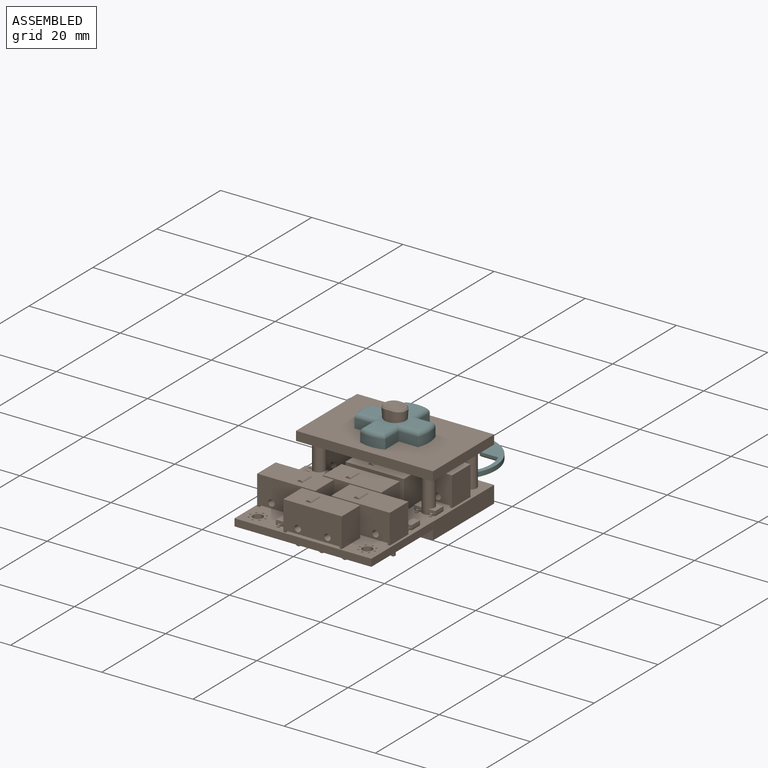
[diagram: assembled view]
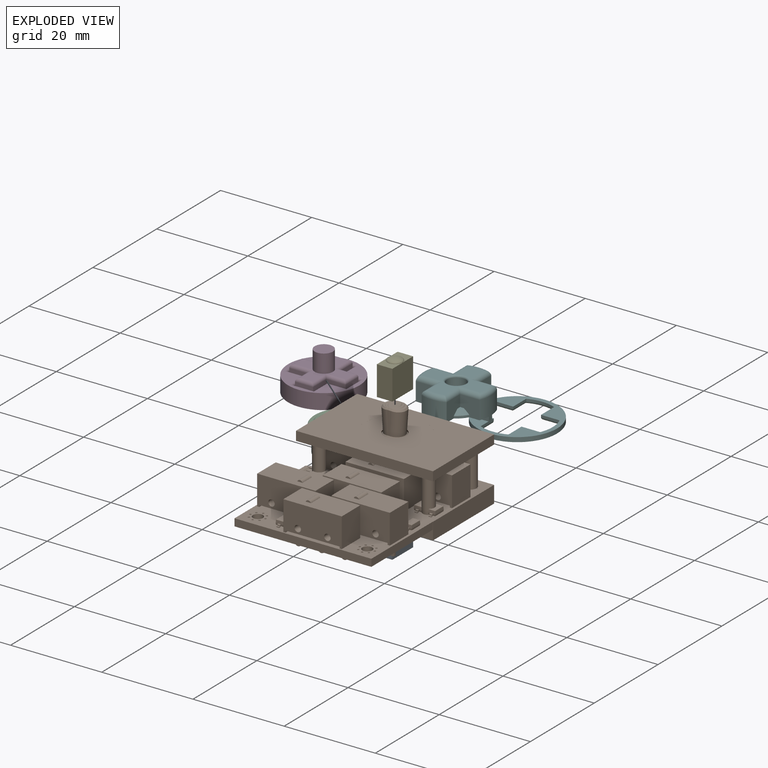
[diagram: exploded view]
GUIDED TOUR — FREECAD ASSEMBLY "caps"

This assembly has 6 components, labeled P0..P5 below (a component is one placed body or linked part; the same part can appear more than once), held together by 0 modeled joints plus 8 derived contact edges. A joint is a constraint between two components; its type names the relative motion it leaves free:
  CONTACT — a derived adjacency edge — the two components touch in the source model (clearance under 2% of the assembly's diagonal); it is measured from the geometry, not a modeled constraint.
Axis/direction vectors are unit vectors and 'through' points are millimeter coordinates, both in the assembly's world frame.

MATES
  1. CONTACT "contact_0_1": P0 <-> P1, contact direction (0.000, 0.000, 1.000) through (13.02, -12.62, 0.20) mm (derived from contact, not a modeled constraint)
  2. CONTACT "contact_0_4": P0 <-> P4, contact direction (0.000, 0.000, 1.000) through (13.28, -6.30, 0.00) mm (derived from contact, not a modeled constraint)
  3. CONTACT "contact_1_2": P1 <-> P2, contact direction (-0.687, 0.705, -0.177) through (4.05, -3.03, 0.02) mm (derived from contact, not a modeled constraint)
  4. CONTACT "contact_1_3": P1 <-> P3, contact direction (-0.687, 0.705, -0.177) through (3.18, -7.24, -0.01) mm (derived from contact, not a modeled constraint)
  5. CONTACT "contact_1_4": P1 <-> P4, contact direction (0.000, 0.000, 1.000) through (14.84, -8.62, 5.99) mm (derived from contact, not a modeled constraint)
  6. CONTACT "contact_1_5": P1 <-> P5, contact direction (0.000, 1.000, 0.000) through (14.38, -8.72, 7.47) mm (derived from contact, not a modeled constraint)
  7. CONTACT "contact_2_3": P2 <-> P3, contact direction (0.000, 0.000, 1.000) through (4.81, -4.93, 0.01) mm (derived from contact, not a modeled constraint)
  8. CONTACT "contact_4_5": P4 <-> P5, contact direction (0.000, 1.000, 0.000) through (15.87, -9.55, 7.01) mm (derived from contact, not a modeled constraint)

ASSEMBLY ORDER
  1. P1 — the base component [order heuristic]
  2. P0 [order heuristic]
  3. P2 [order heuristic]
  4. P3 [order heuristic]
  5. P4 [order heuristic]
  6. P5 [order heuristic]
Order-tag legend:
  [order heuristic] — this assembly is geometrically interlocked (no collision-free removal order exists), so components are listed in mate-graph order; insertion feasibility is not verified.

Of the 6 components, 6 carry a construction recipe — the FreeCAD feature program (sketches with constraints, then the solid features that consume them) that regenerates the part from scratch, quoted from this document or from the linked companion document it references; the rest are supplied as boundary geometry only. The tour below walks the components in assembly order: each is shown spotlighted twice — in the assembled view, then in the exploded view, where a leader line traces a displaced component back to its assembled socket (components that stay in place when exploded have no leader line; saturated green if recipe-attached, orange if geometry-only; every other component desaturated gray) — followed by its recipe or geometry summary and the mates that hold it.
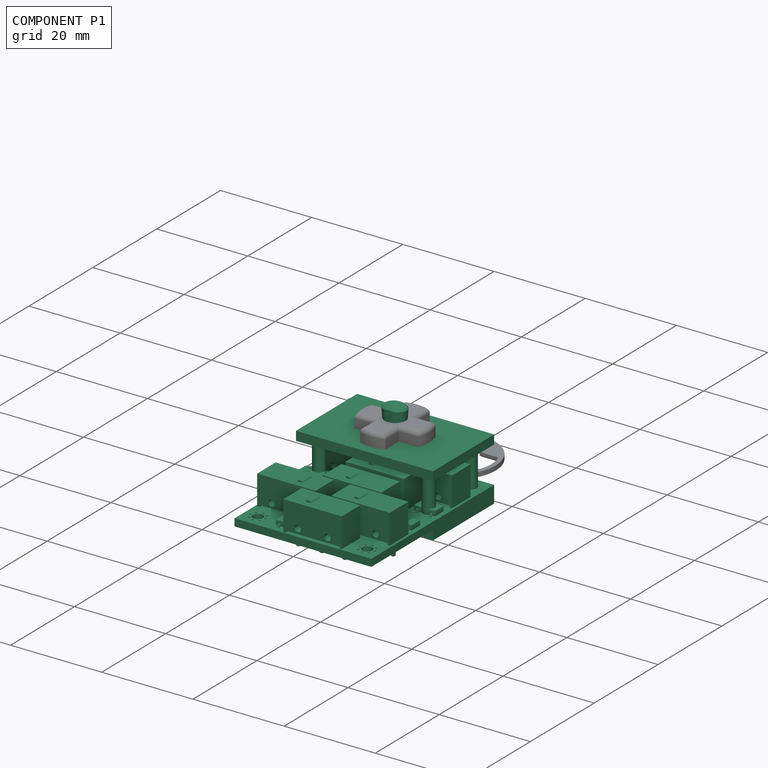
[diagram: component P1 — assembled]
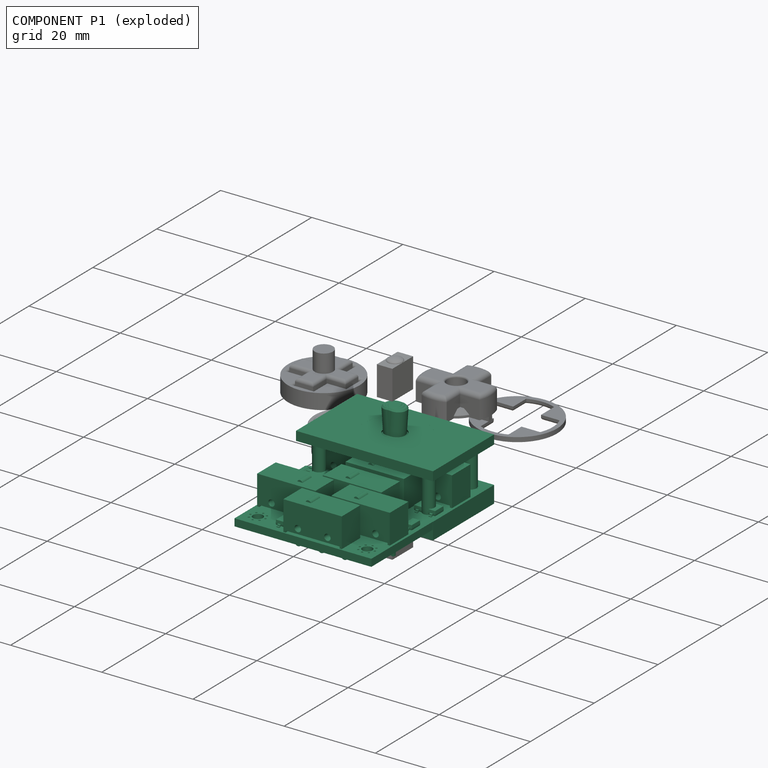
[diagram: component P1 — exploded]
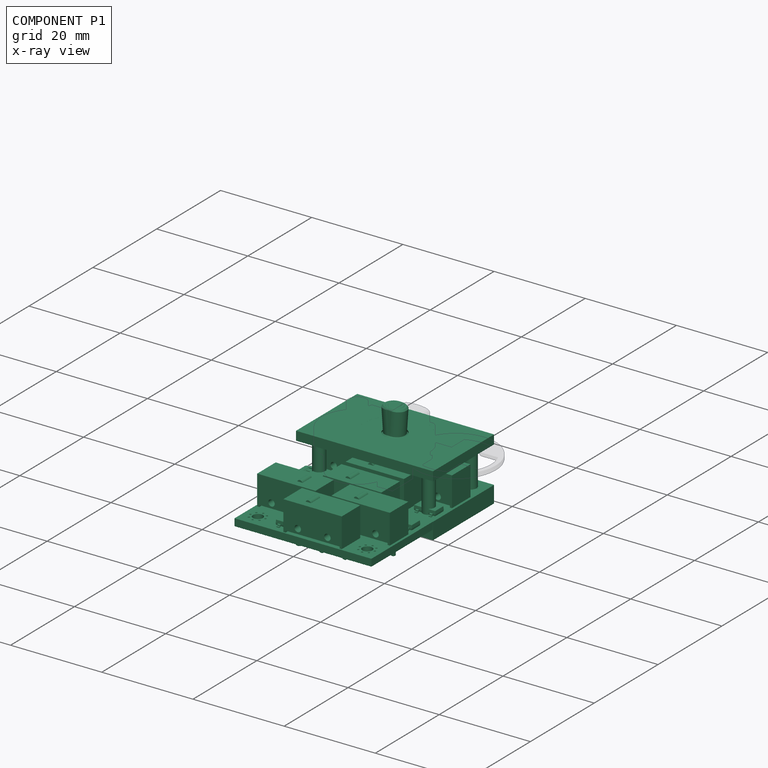
[diagram: component P1 — x-ray view]
COMPONENT P1 — recipe-attached ("tester", modeled in this document).
Held by: resting contact with P0 (derived edge); resting contact with P2 (derived edge); resting contact with P3 (derived edge); resting contact with P4 (derived edge); resting contact with P5 (derived edge).
Construction recipe (the document's own serialized feature program — sketch geometry with constraints, then the solid features built on it; lengths are millimeters unless a unit is written):

FEATURE [PartDesign::SubShapeBinder] Binder
  BindCopyOnChange = 0
  BindMode = 0
  ClaimChildren = false
  Context = -> Part [Part004.Body003.Binder.]
  Fuse = false
  MakeFace = true
  OffsetFill = false
  OffsetIntersection = false
  OffsetJoinType = 0
  OffsetOpenResult = false
  PartialLoad = false
  Refine = true
  Relative = true
  Support = -> [Link[Pocket003.Face26,Pocket003.Face27,Pocket003.Face25,Pocket003.Face24]]
  _Version = 2
FEATURE [Sketcher::SketchObject] Sketch008
  ArcFitTolerance = 1e-06
  AttachmentSupport = -> [Binder]
  ExternalGeometry = -> [Binder]
  FullyConstrained = true
  MakeInternals = false
  MapMode = 5
  Placement = pos=(0,0,-2.5) rot=(0,0,1;0rad)
  sketch-geometry (4):
    g0: Circle CenterX=2.98327 CenterY=-3.01673 CenterZ=0 NormalX=0 NormalY=0 NormalZ=1 AngleXU=0 Radius=1.3
    g1: Circle CenterX=27 CenterY=-3.01673 CenterZ=0 NormalX=0 NormalY=0 NormalZ=1 AngleXU=0 Radius=1.3
    g2: Circle CenterX=27 CenterY=-16.15 CenterZ=0 NormalX=0 NormalY=0 NormalZ=1 AngleXU=0 Radius=1.3
    g3: Circle CenterX=2.98327 CenterY=-16.15 CenterZ=0 NormalX=0 NormalY=0 NormalZ=1 AngleXU=0 Radius=1.3
  constraints (8):
    c: Coincident(g0,g-3)
    c: Diameter(g0) = 2.6
    c: Coincident(g1,g-4)
    c: Coincident(g2,g-5)
    c: Coincident(g3,g-6)
    c: Equal(g0,g1)
    c: Equal(g1,g2)
    c: Equal(g2,g3)
FEATURE [PartDesign::Pad] Pad001
  Direction = (0,0,1)
  Length = 2.5
  Length2 = 10
  Profile = -> Sketch008
  ReferenceAxis = -> Sketch008 [N_Axis]
  Refine = true
  Suppressed = false
  Type = 0
FEATURE [PartDesign::Pad] Pad002
  BaseFeature = -> Pad001
  Direction = (0,0,1)
  Length = 10.003
  Length2 = 10
  Profile = -> Pad001 [Face6,Face3,Face9,Face12]
  Refine = true
  Suppressed = false
  Type = 0
  expr: Length = <<vars>>#VarSet.Base_recess_height
FEATURE [PartDesign::SubShapeBinder] Binder001
  BindCopyOnChange = 0
  BindMode = 0
  ClaimChildren = false
  Context = -> Part [Part004.Body003.Binder001.]
  Fuse = false
  MakeFace = true
  OffsetFill = false
  OffsetIntersection = false
  OffsetJoinType = 0
  OffsetOpenResult = false
  PartialLoad = false
  Refine = true
  Relative = true
  Support = -> [Link[Pocket003.Edge6,Pocket003.Edge9]]
  _Version = 2
FEATURE [Sketcher::SketchObject] Sketch009
  ArcFitTolerance = 1e-06
  AttachmentSupport = -> [Pad002]
  ExternalGeometry = -> [Binder001]
  FullyConstrained = true
  MakeInternals = false
  MapMode = 5
  Placement = pos=(0,0,10.003) rot=(0,0,1;0rad)
  sketch-geometry (4):
    g0: LineSegment StartX=0 StartY=0 StartZ=0 EndX=0 EndY=-19.15 EndZ=0
    g1: LineSegment StartX=0 StartY=-19.15 StartZ=0 EndX=30.0509 EndY=-19.15 EndZ=0
    g2: LineSegment StartX=30.0509 StartY=-19.15 StartZ=0 EndX=30.0509 EndY=0 EndZ=0
    g3: LineSegment StartX=30.0509 StartY=0 StartZ=0 EndX=0 EndY=0 EndZ=0
  constraints (10):
    c: Coincident(g0,g1)
    c: Coincident(g1,g2)
    c: Coincident(g2,g3)
    c: Coincident(g3,g0)
    c: Vertical(g0)
    c: Vertical(g2)
    c: Horizontal(g1)
    c: Horizontal(g3)
    c: Coincident(g0,g-1)
    c: Coincident(g1,g-4)
FEATURE [PartDesign::Pad] Pad003
  BaseFeature = -> Pad002
  Direction = (0,0,1)
  Length = 2
  Length2 = 10
  Profile = -> Sketch009
  ReferenceAxis = -> Sketch009 [N_Axis]
  Refine = true
  Reversed = true
  Suppressed = false
  Type = 0
FEATURE [PartDesign::SubShapeBinder] Binder002
  BindCopyOnChange = 0
  BindMode = 0
  ClaimChildren = false
  Context = -> Part [Part004.Body003.Binder002.]
  Fuse = false
  MakeFace = true
  OffsetFill = false
  OffsetIntersection = false
  OffsetJoinType = 0
  OffsetOpenResult = false
  PartialLoad = false
  Refine = true
  Relative = true
  Support = -> [Link[Pocket003.Edge20]]
  _Version = 2
FEATURE [Sketcher::SketchObject] Sketch010
  ArcFitTolerance = 1e-06
  AttacherType = Attacher::AttachEngine3D
  AttachmentSupport = -> [Pad003]
  ExternalGeometry = -> [Binder002]
  FullyConstrained = true
  MakeInternals = false
  MapMode = 5
  Placement = pos=(0,0,10.003) rot=(0,0,1;0rad)
  sketch-geometry (2):
    g0: Circle CenterX=14.98 CenterY=-9.55 CenterZ=0 NormalX=0 NormalY=0 NormalZ=1 AngleXU=0 Radius=6.95
    g1: GeomPoint X=14.98 Y=-9.55 Z=0
  constraints (3):
    c: Diameter(g0) = 13.9
    c: Coincident(g0,g-3)
    c: Coincident(g1,g0)
FEATURE [PartDesign::Pocket] Pocket001
  BaseFeature = -> Pad003
  Direction = (0,0,-1)
  Length = 5
  Length2 = 5
  Profile = -> Sketch010
  ReferenceAxis = -> Sketch010 [N_Axis]
  Refine = true
  Suppressed = false
  Type = 0
FEATURE [PartDesign::Body] Body003  label="top"
  AllowCompound = true
  Group = -> [Binder,Sketch008,Pad001,Pad002,Binder001,Sketch009,Pad003,Binder002,Sketch010,Pocket001]
  Origin = -> Origin010
  Tip = -> Pocket001
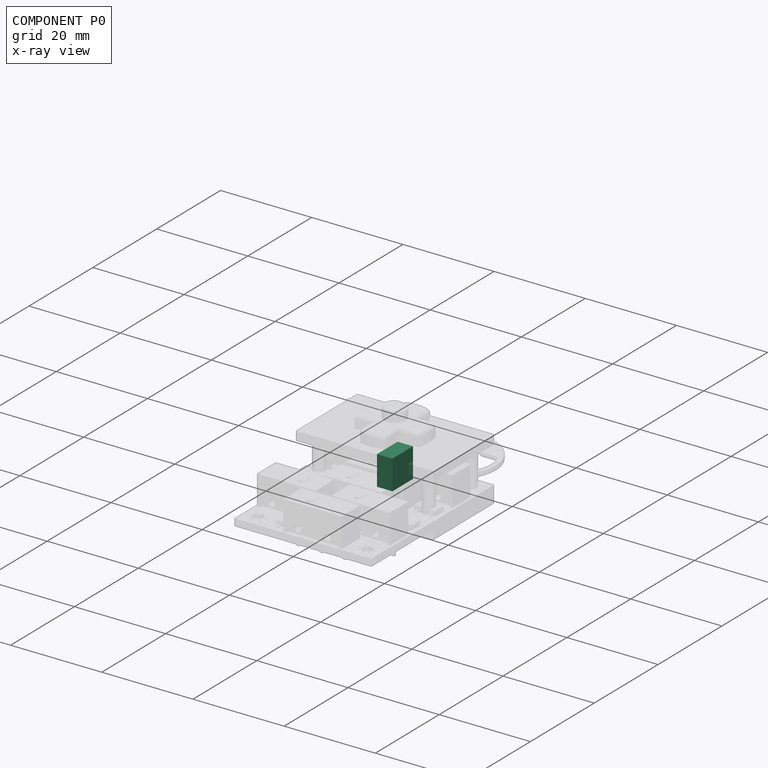
[diagram: component P0 — x-ray view]
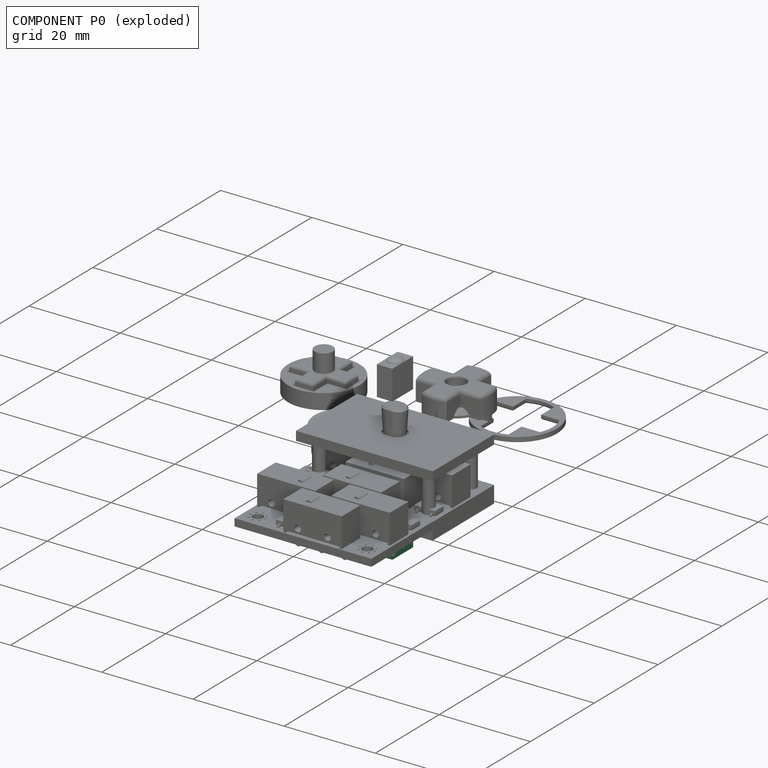
[diagram: component P0 — exploded]
COMPONENT P0 — recipe-attached ("pivot-body001", modeled in this document).
Held by: resting contact with P1 (derived edge); resting contact with P4 (derived edge).
Construction recipe (the document's own serialized feature program — sketch geometry with constraints, then the solid features built on it; lengths are millimeters unless a unit is written):

FEATURE [Sketcher::SketchObject] Sketch034
  ArcFitTolerance = 1e-06
  AttachmentSupport = -> [XY_Plane027]
  FullyConstrained = false
  MakeInternals = false
  MapMode = 5
  sketch-geometry (4):
    g0: LineSegment StartX=13.2837 StartY=-6.29606 StartZ=0 EndX=13.2837 EndY=-12.7968 EndZ=0
    g1: LineSegment StartX=13.2837 StartY=-12.7968 StartZ=0 EndX=16.6847 EndY=-12.7968 EndZ=0
    g2: LineSegment StartX=16.6847 StartY=-12.7968 StartZ=0 EndX=16.6847 EndY=-6.29606 EndZ=0
    g3: LineSegment StartX=16.6847 StartY=-6.29606 StartZ=0 EndX=13.2837 EndY=-6.29606 EndZ=0
  constraints (8):
    c: Coincident(g0,g1)
    c: Coincident(g1,g2)
    c: Coincident(g2,g3)
    c: Coincident(g3,g0)
    c: Vertical(g0)
    c: Vertical(g2)
    c: Horizontal(g1)
    c: Horizontal(g3)
FEATURE [PartDesign::Pad] Pad017
  Direction = (0,0,1)
  Length = 6.5
  Length2 = 10
  Profile = -> Sketch034
  ReferenceAxis = -> Sketch034 [N_Axis]
  Refine = true
  Suppressed = false
  Type = 0
FEATURE [Sketcher::SketchObject] Sketch035
  ArcFitTolerance = 1e-06
  AttachmentSupport = -> [Pad017]
  ExternalGeometry = -> [Pad017]
  FullyConstrained = true
  MakeInternals = false
  MapMode = 5
  Placement = pos=(0,0,6.5) rot=(0,0,1;0rad)
  sketch-geometry (2):
    g0: LineSegment [constr] StartX=14.9842 StartY=-6.29606 StartZ=0 EndX=14.9842 EndY=-12.7968 EndZ=0
    g1: GeomPoint X=14.9842 Y=-9.54642 Z=0
  constraints (3):
    c: Symmetric(g-3,g-3,g0)
    c: Symmetric(g-4,g-4,g0)
    c: Symmetric(g0,g0,g1)
FEATURE [PartDesign::Body] Body012  label="pivot-body001"
  AllowCompound = false
  Group = -> [Sketch034,Pad017,Sketch035]
  Origin = -> Origin026
  Tip = -> Pad017
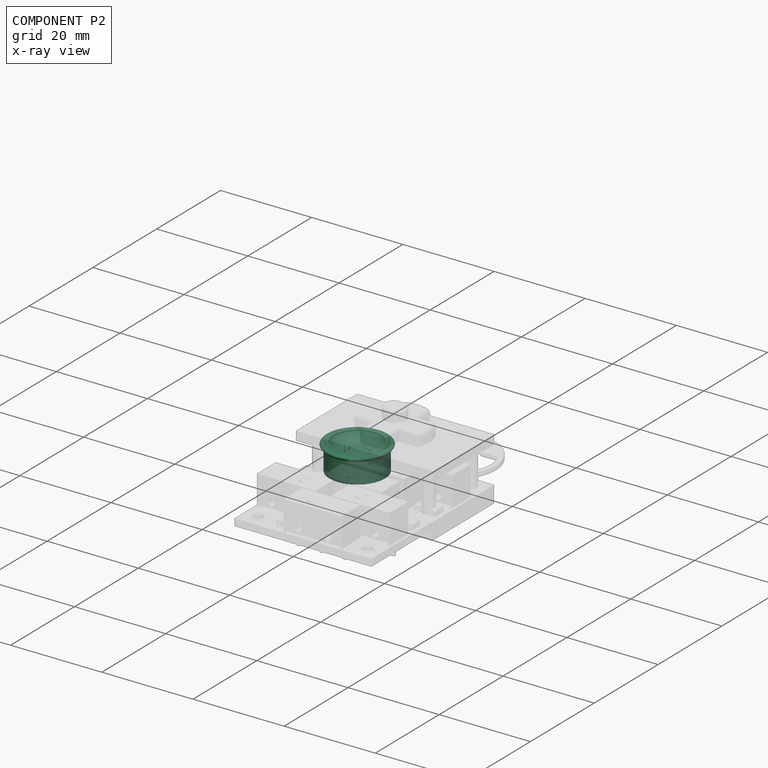
[diagram: component P2 — x-ray view]
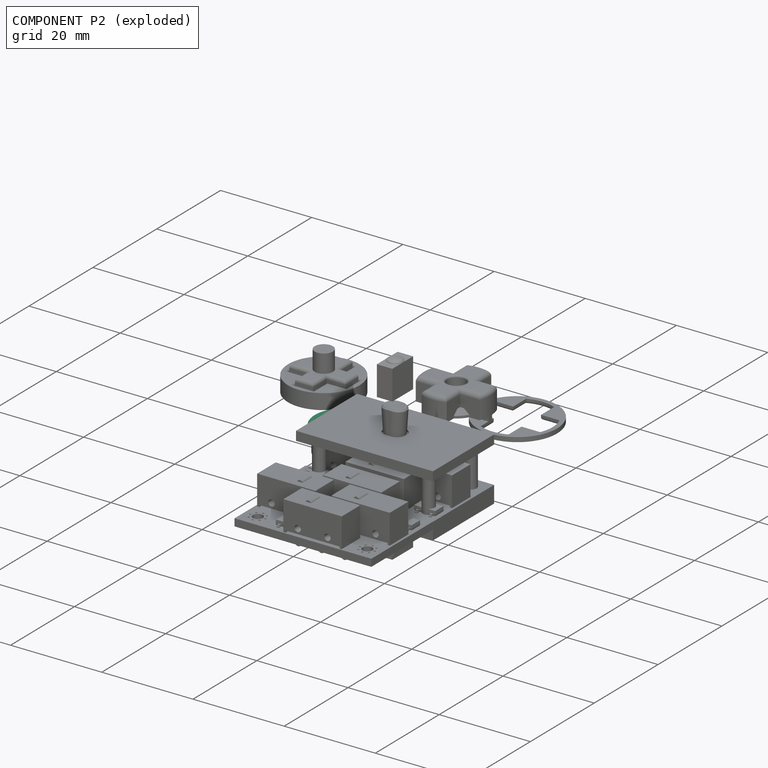
[diagram: component P2 — exploded]
COMPONENT P2 — recipe-attached ("stick", modeled in this document).
Held by: resting contact with P1 (derived edge); resting contact with P3 (derived edge).
Construction recipe (the document's own serialized feature program — sketch geometry with constraints, then the solid features built on it; lengths are millimeters unless a unit is written):

FEATURE [Sketcher::SketchObject] Sketch001
  ArcFitTolerance = 1e-06
  FullyConstrained = false
  MakeInternals = false
  MapMode = 5
  Placement = pos=(0,0,0) rot=(1,0,0;1.5708rad)
  sketch-geometry (14):
    g0: LineSegment StartX=1.69043 StartY=8 StartZ=0 EndX=0 EndY=8 EndZ=0
    g1: GeomPoint [constr] X=2 Y=1.6 Z=0
    g2: ArcOfCircle [constr] CenterX=1.69043 CenterY=7.6871 CenterZ=0 NormalX=0 NormalY=0 NormalZ=1 AngleXU=0 Radius=0.312896 StartAngle=6.27442 EndAngle=7.85398
    g3: LineSegment StartX=2 StartY=7.65795 StartZ=0 EndX=1.69043 EndY=8 EndZ=0
    g4: LineSegment StartX=0 StartY=8 StartZ=0 EndX=0 EndY=1.2 EndZ=0
    g5: LineSegment StartX=2 StartY=7.65795 StartZ=0 EndX=2 EndY=2.62488 EndZ=0
    g6: LineSegment StartX=5.72458 StartY=1 StartZ=0 EndX=3.14484 EndY=1 EndZ=0
    g7: ArcOfCircle CenterX=0 CenterY=0 CenterZ=0 NormalX=0 NormalY=0 NormalZ=1 AngleXU=0 Radius=3.3 StartAngle=0.307871 EndAngle=0.919698
    g8: LineSegment StartX=6.7 StartY=0.024579 StartZ=0 EndX=6.7 EndY=-1e-16 EndZ=0
    g9: ArcOfCircle CenterX=5.72458 CenterY=0.024579 CenterZ=0 NormalX=0 NormalY=0 NormalZ=1 AngleXU=0 Radius=0.975421 StartAngle=0 EndAngle=1.5708
    g10: GeomPoint [constr] X=6.7 Y=1 Z=0
    g11: LineSegment StartX=6.7 StartY=-1e-16 StartZ=0 EndX=1.2 EndY=-1e-16 EndZ=0
    g12: ArcOfCircle CenterX=0 CenterY=-1e-16 CenterZ=0 NormalX=0 NormalY=0 NormalZ=1 AngleXU=0 Radius=1.2 StartAngle=0 EndAngle=1.5708
    g13: LineSegment [constr] StartX=1.2 StartY=-1e-16 StartZ=0 EndX=0 EndY=-1e-16 EndZ=0
  constraints (32):
    c: PointOnObject(g0,g-2)
    c: Horizontal(g0)
    c: Distance(g0,g-1) = 8
    c: Tangent(g0,g2) = -1.5708
    c: Coincident(g3,g0)
    c: Coincident(g0,g4)
    c: Vertical(g4)
    c: Distance(g8,g-2) = 6.7
    c: Coincident(g5,g3)
    c: Vertical(g5)
    c: Horizontal(g6)
    c: Coincident(g7,g5)
    c: Coincident(g7,g6)
    c: Radius(g7) = 3.3
    c: Distance(g4,g5) = 2
    c: Vertical(g8)
    c: PointOnObject(g10,g6)
    c: PointOnObject(g10,g8)
    c: Tangent(g6,g9) = -1.5708
    c: Tangent(g8,g9) = 1.5708
    c: Coincident(g11,g8)
    c: PointOnObject(g12,g-2)
    c: Horizontal(g11)
    c: Radius(g12) = 1.2
    c: Distance(g6,g-1) = 1
    c: Distance(g11,g6) = 1
    c: Coincident(g4,g12)
    c: Coincident(g11,g12)
    c: Coincident(g13,g11)
    c: Coincident(g13,g12)
    c: Horizontal(g13)
    c: Coincident(g7,g-1)
FEATURE [PartDesign::Revolution] Revolution
  Angle = 360
  Angle2 = 60
  Axis = (0,2e-16,1)
  Base = (0,0,0)
  Placement = pos=(0,0,0) rot=(1,0,0;1.5708rad)
  Profile = -> Sketch001
  ReferenceAxis = -> Sketch001 [V_Axis]
  Refine = true
  Reversed = true
  Suppressed = false
  Type = 0
FEATURE [Sketcher::SketchObject] Sketch002
  ArcFitTolerance = 1e-06
  AttachmentSupport = -> [XZ_Plane006]
  FullyConstrained = true
  MakeInternals = false
  MapMode = 5
  Placement = pos=(0,0,0) rot=(1,0,0;1.5708rad)
  sketch-geometry (4):
    g0: LineSegment StartX=3.16228 StartY=1.5 StartZ=0 EndX=7 EndY=1.5 EndZ=0
    g1: ArcOfCircle CenterX=0 CenterY=0 CenterZ=0 NormalX=0 NormalY=0 NormalZ=1 AngleXU=0 Radius=3.5 StartAngle=0.442911 EndAngle=0.795603
    g2: LineSegment StartX=7 StartY=2.5 StartZ=0 EndX=7 EndY=1.5 EndZ=0
    g3: LineSegment StartX=7 StartY=2.5 StartZ=0 EndX=2.44949 EndY=2.5 EndZ=0
  constraints (12):
    c: Distance(g2,g-2) = 7
    c: Coincident(g1,g-1)
    c: Radius(g1) = 3.5
    c: Coincident(g2,g0)
    c: Vertical(g2)
    c: DistanceY(g2,g2) = 1
    c: Horizontal(g0)
    c: Distance(g-1,g0) = 1.5
    c: Coincident(g3,g2)
    c: Horizontal(g3)
    c: Coincident(g3,g1)
    c: Coincident(g1,g0)
FEATURE [PartDesign::Revolution] Revolution001
  Angle = 360
  Angle2 = 60
  Axis = (0,2e-16,1)
  Base = (0,0,0)
  Placement = pos=(0,0,0) rot=(1,0,0;1.5708rad)
  Profile = -> Sketch002
  ReferenceAxis = -> Sketch002 [V_Axis]
  Refine = true
  Reversed = true
  Suppressed = false
  Type = 0
FEATURE [Sketcher::SketchObject] Sketch
  ArcFitTolerance = 1e-06
  AttachmentSupport = -> [XY_Plane]
  FullyConstrained = true
  MakeInternals = false
  MapMode = 5
  sketch-geometry (1):
    g0: Circle CenterX=0 CenterY=0 CenterZ=0 NormalX=0 NormalY=0 NormalZ=1 AngleXU=0 Radius=5.85
  constraints (2):
    c: Diameter(g0) = 11.7
    c: Coincident(g0,g-1)
FEATURE [PartDesign::Pad] Pad
  Direction = (0,0,1)
  Length = 3.5
  Length2 = 10
  Profile = -> Sketch
  ReferenceAxis = -> Sketch [N_Axis]
  Refine = true
  Suppressed = false
  Type = 0
FEATURE [Sketcher::SketchObject] Sketch003
  ArcFitTolerance = 1e-06
  AttachmentSupport = -> [Pad]
  FullyConstrained = true
  MakeInternals = false
  MapMode = 5
  Placement = pos=(0,0,3.5) rot=(0,0,1;0rad)
  sketch-geometry (1):
    g0: Circle CenterX=0 CenterY=0 CenterZ=0 NormalX=0 NormalY=0 NormalZ=1 AngleXU=0 Radius=4.35
  constraints (2):
    c: Diameter(g0) = 8.7
    c: Coincident(g0,g-1)
FEATURE [PartDesign::Plane] DatumPlane
  AttachmentOffset = pos=(0,0,1.3) rot=(0,0,1;0rad)
  AttachmentSupport = -> [Pad]
  Length = 60
  MapMode = 5
  Placement = pos=(0,0,4.8) rot=(0,0,1;0rad)
  ResizeMode = 0
  Width = 60
FEATURE [Sketcher::SketchObject] Sketch004
  ArcFitTolerance = 1e-06
  AttachmentSupport = -> [DatumPlane]
  FullyConstrained = true
  MakeInternals = false
  MapMode = 5
  Placement = pos=(0,0,4.8) rot=(0,0,1;0rad)
  sketch-geometry (1):
    g0: Circle CenterX=0 CenterY=0 CenterZ=0 NormalX=0 NormalY=0 NormalZ=1 AngleXU=0 Radius=5.35
  constraints (2):
    c: Diameter(g0) = 10.7
    c: Coincident(g0,g-1)
FEATURE [PartDesign::AdditiveLoft] AdditiveLoft
  BaseFeature = -> Pad
  Closed = false
  Profile = -> Sketch003
  Refine = true
  Ruled = false
  Sections = -> [Sketch004]
  Suppressed = false
FEATURE [Sketcher::SketchObject] Sketch005
  ArcFitTolerance = 1e-06
  AttachmentSupport = -> [AdditiveLoft]
  FullyConstrained = true
  MakeInternals = false
  MapMode = 5
  Placement = pos=(0,0,4.8) rot=(0,0,1;0rad)
  sketch-geometry (1):
    g0: Circle CenterX=0 CenterY=0 CenterZ=0 NormalX=0 NormalY=0 NormalZ=1 AngleXU=0 Radius=4.85
  constraints (2):
    c: Diameter(g0) = 9.7
    c: Coincident(g0,g-1)
FEATURE [Sketcher::SketchObject] Sketch006
  ArcFitTolerance = 1e-06
  AttachmentSupport = -> [AdditiveLoft]
  FullyConstrained = true
  MakeInternals = false
  MapMode = 5
  Placement = pos=(0,0,3.5) rot=(0,0,1;0rad)
  sketch-geometry (1):
    g0: Circle CenterX=0 CenterY=0 CenterZ=0 NormalX=0 NormalY=0 NormalZ=1 AngleXU=0 Radius=3.85
  constraints (2):
    c: Diameter(g0) = 7.7
    c: Coincident(g0,g-1)
FEATURE [PartDesign::SubtractiveLoft] SubtractiveLoft
  BaseFeature = -> AdditiveLoft
  Closed = false
  Profile = -> Sketch006
  Refine = true
  Ruled = false
  Sections = -> [Sketch005]
  Suppressed = false
FEATURE [Sketcher::SketchObject] Sketch007
  ArcFitTolerance = 1e-06
  AttachmentSupport = -> [SubtractiveLoft]
  FullyConstrained = true
  MakeInternals = false
  MapMode = 5
  Placement = pos=(0,0,0) rot=(1,0,0;3.14159rad)
  sketch-geometry (1):
    g0: Circle CenterX=0 CenterY=0 CenterZ=0 NormalX=0 NormalY=0 NormalZ=1 AngleXU=0 Radius=2.05
  constraints (2):
    c: Diameter(g0) = 4.1
    c: Coincident(g0,g-1)
FEATURE [PartDesign::Pocket] Pocket
  BaseFeature = -> SubtractiveLoft
  Direction = (0,0,1)
  Length = 3
  Length2 = 5
  Profile = -> Sketch007
  ReferenceAxis = -> Sketch007 [N_Axis]
  Refine = true
  Suppressed = false
  Type = 0
FEATURE [PartDesign::Fillet] Fillet
  Base = -> Pocket [Edge11]
  BaseFeature = -> Pocket
  Radius = 1
  Refine = true
  SupportTransform = false
  Suppressed = false
  UseAllEdges = false
FEATURE [PartDesign::Chamfer] Chamfer
  Angle = 45
  Base = -> Fillet [Edge6]
  BaseFeature = -> Fillet
  ChamferType = 2
  FlipDirection = false
  Refine = true
  Size = 0.3
  Size2 = 1
  SupportTransform = false
  Suppressed = false
  UseAllEdges = false
FEATURE [PartDesign::Chamfer] Chamfer001
  Angle = 45
  Base = -> Chamfer [Edge13]
  BaseFeature = -> Chamfer
  ChamferType = 1
  FlipDirection = false
  Refine = true
  Size = 3
  Size2 = 2
  SupportTransform = false
  Suppressed = false
  UseAllEdges = false
FEATURE [PartDesign::Chamfer] Chamfer002
  Angle = 45
  Base = -> Chamfer001 [Edge7]
  BaseFeature = -> Chamfer001
  ChamferType = 0
  FlipDirection = false
  Refine = true
  Size = 0.4
  Size2 = 1
  SupportTransform = false
  Suppressed = false
  UseAllEdges = false
FEATURE [PartDesign::Body] Body  label="cap"
  AllowCompound = false
  Group = -> [Sketch,Pad,Sketch003,DatumPlane,Sketch004,AdditiveLoft,Sketch005,Sketch006,SubtractiveLoft,Sketch007,Pocket,Fillet,Chamfer,Chamfer001,Chamfer002]
  Origin = -> Origin
  Placement = pos=(0,0,5) rot=(0,0,1;0rad)
  Tip = -> Chamfer002
FEATURE [PartDesign::ShapeBinder] ShapeBinder
  Placement = pos=(0,0,0) rot=(1,0,0;1.5708rad)
  Support = -> [Revolution001]
  TraceSupport = false
FEATURE [PartDesign::Body] Body001  label="stem"
  AllowCompound = false
  Group = -> [Sketch001,Revolution,ShapeBinder]
  Origin = -> Origin005
  Tip = -> Revolution
FEATURE [Sketcher::SketchObject] Sketch036  label="center"
  ArcFitTolerance = 1e-06
  AttachmentSupport = -> [Revolution001]
  FullyConstrained = true
  MakeInternals = false
  MapMode = 5
  Placement = pos=(0,1.1e-15,2.5) rot=(0,0,1;3.14159rad)
  sketch-geometry (1):
    g0: GeomPoint X=0 Y=0 Z=0
  constraints (1):
    c: Coincident(g0,g-1)
FEATURE [PartDesign::Body] Body002  label="stick-recess"
  AllowCompound = false
  Group = -> [Sketch002,Revolution001,Sketch036]
  Origin = -> Origin006
  Tip = -> Revolution001
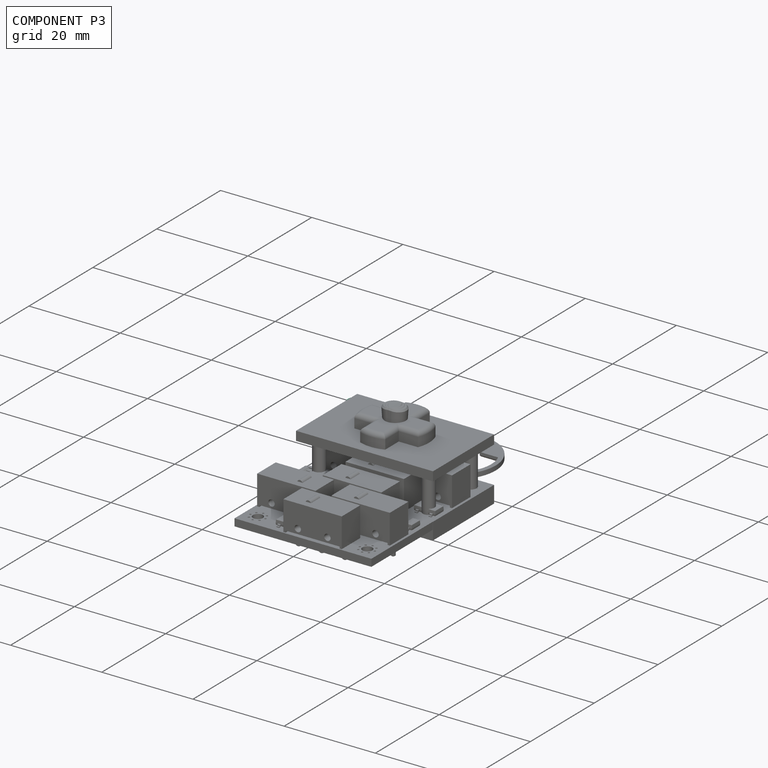
[diagram: component P3 — assembled]
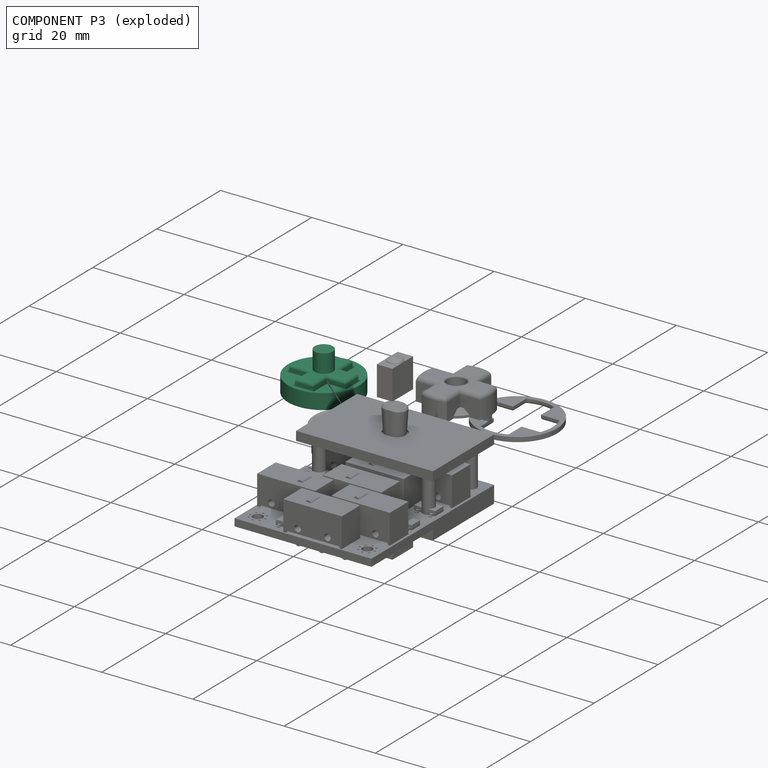
[diagram: component P3 — exploded]
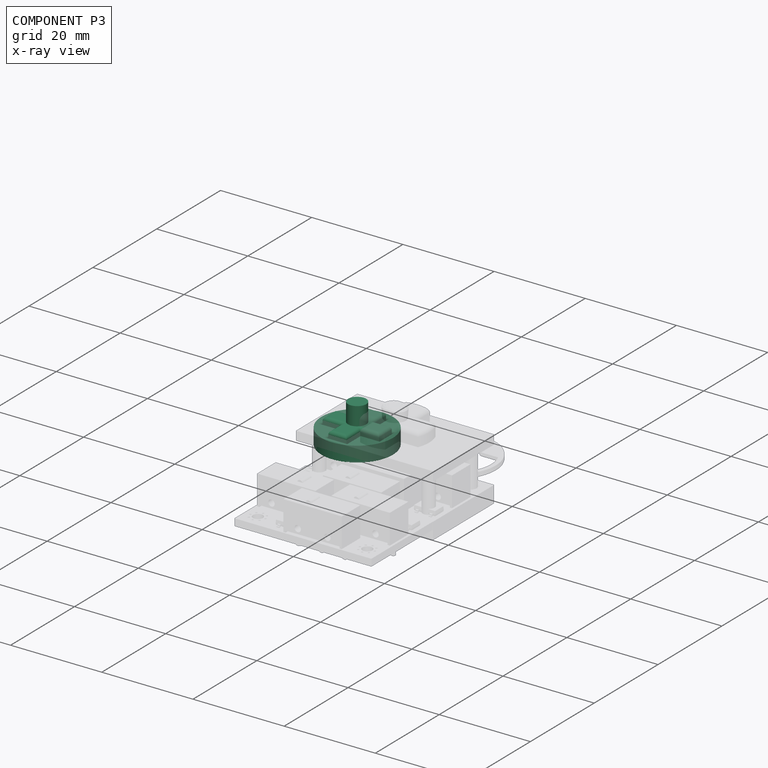
[diagram: component P3 — x-ray view]
COMPONENT P3 — recipe-attached ("dpad", modeled in this document).
Held by: resting contact with P1 (derived edge); resting contact with P2 (derived edge).
Construction recipe (the document's own serialized feature program — sketch geometry with constraints, then the solid features built on it; lengths are millimeters unless a unit is written):

FEATURE [Sketcher::SketchObject] Sketch013
  ArcFitTolerance = 1e-06
  AttachmentSupport = -> [XY_Plane016]
  FullyConstrained = true
  MakeInternals = false
  MapMode = 5
  sketch-geometry (2):
    g0: Circle CenterX=0 CenterY=0 CenterZ=0 NormalX=0 NormalY=0 NormalZ=1 AngleXU=0 Radius=7
    g1: Circle CenterX=0 CenterY=0 CenterZ=0 NormalX=0 NormalY=0 NormalZ=1 AngleXU=0 Radius=7.83
  constraints (4):
    c: Diameter(g0) = 14
    c: Coincident(g0,g-1)
    c: Diameter(g1) = 15.66
    c: Coincident(g1,g0)
FEATURE [PartDesign::Pad] Pad005
  Direction = (0,0,1)
  Length = 3.37
  Length2 = 10
  Profile = -> Sketch013
  ReferenceAxis = -> Sketch013 [N_Axis]
  Refine = true
  Suppressed = false
  Type = 0
FEATURE [Sketcher::SketchObject] Sketch015
  ArcFitTolerance = 1e-06
  AttachmentSupport = -> [Pad005]
  ExternalGeometry = -> [Pad005]
  FullyConstrained = false
  MakeInternals = false
  MapMode = 5
  Placement = pos=(0,0,3.37) rot=(0,0,1;0rad)
  sketch-geometry (1):
    g0: Circle CenterX=0 CenterY=0 CenterZ=0 NormalX=0 NormalY=0 NormalZ=1 AngleXU=0 Radius=7
  constraints (1):
    c: Coincident(g0,g-1)
FEATURE [PartDesign::Pad] Pad007
  BaseFeature = -> Pad005
  Direction = (0,0,1)
  Length = 1
  Length2 = 10
  Profile = -> Sketch015
  ReferenceAxis = -> Sketch015 [N_Axis]
  Refine = true
  Reversed = true
  Suppressed = false
  Type = 0
FEATURE [PartDesign::SubShapeBinder] Binder003
  BindCopyOnChange = 0
  BindMode = 0
  ClaimChildren = false
  Context = -> Part006 [Body005.Binder003.]
  Fuse = false
  MakeFace = true
  OffsetFill = false
  OffsetIntersection = false
  OffsetJoinType = 0
  OffsetOpenResult = false
  PartialLoad = false
  Refine = true
  Relative = true
  Support = -> [Body004[Pad006.Face23]]
  _Version = 2
FEATURE [Sketcher::SketchObject] Sketch016
  ArcFitTolerance = 1e-06
  AttachmentSupport = -> [Pad007]
  ExternalGeometry = -> [Binder003]
  FullyConstrained = true
  MakeInternals = false
  MapMode = 5
  Placement = pos=(0,0,3.37) rot=(0,0,1;0rad)
  sketch-geometry (12):
    g0: LineSegment StartX=-2.3 StartY=2.3 StartZ=0 EndX=-2.3 EndY=6.48466 EndZ=0
    g1: LineSegment StartX=-2.3 StartY=6.48466 StartZ=0 EndX=2.3 EndY=6.48466 EndZ=0
    g2: LineSegment StartX=2.3 StartY=6.48466 StartZ=0 EndX=2.3 EndY=2.3 EndZ=0
    g3: LineSegment StartX=2.3 StartY=2.3 StartZ=0 EndX=6.48466 EndY=2.3 EndZ=0
    g4: LineSegment StartX=6.48466 StartY=2.3 StartZ=0 EndX=6.48466 EndY=-2.3 EndZ=0
    g5: LineSegment StartX=6.48466 StartY=-2.3 StartZ=0 EndX=2.3 EndY=-2.3 EndZ=0
    g6: LineSegment StartX=2.3 StartY=-2.3 StartZ=0 EndX=2.3 EndY=-6.48466 EndZ=0
    g7: LineSegment StartX=2.3 StartY=-6.48466 StartZ=0 EndX=-2.3 EndY=-6.48466 EndZ=0
    g8: LineSegment StartX=-2.3 StartY=-6.48466 StartZ=0 EndX=-2.3 EndY=-2.3 EndZ=0
    g9: LineSegment StartX=-2.3 StartY=-2.3 StartZ=0 EndX=-6.48466 EndY=-2.3 EndZ=0
    g10: LineSegment StartX=-6.48466 StartY=-2.3 StartZ=0 EndX=-6.48466 EndY=2.3 EndZ=0
    g11: LineSegment StartX=-6.48466 StartY=2.3 StartZ=0 EndX=-2.3 EndY=2.3 EndZ=0
  constraints (36):
    c: Vertical(g0)
    c: Coincident(g0,g1)
    c: Horizontal(g1)
    c: Coincident(g1,g2)
    c: Vertical(g2)
    c: Coincident(g2,g3)
    c: Horizontal(g3)
    c: Coincident(g3,g4)
    c: Vertical(g4)
    c: Coincident(g4,g5)
    c: Horizontal(g5)
    c: Coincident(g5,g6)
    c: Vertical(g6)
    c: Coincident(g6,g7)
    c: Horizontal(g7)
    c: Coincident(g7,g8)
    c: Vertical(g8)
    c: Coincident(g8,g9)
    c: Horizontal(g9)
    c: Coincident(g9,g10)
    c: Vertical(g10)
    c: Coincident(g10,g11)
    c: Coincident(g11,g0)
    c: Horizontal(g11)
    c: Distance(g-3,g0) = 0.3
    c: Distance(g-4,g1) = 0.3
    c: Distance(g2,g-5) = 0.3
    c: Distance(g3,g-6) = 0.3
    c: Distance(g4,g-7) = 0.3
    c: Distance(g5,g-8) = 0.3
    c: Distance(g-9,g6) = 0.3
    c: Distance(g7,g-10) = 0.3
    c: Distance(g-11,g8) = 0.3
    c: Distance(g-12,g9) = 0.3
    c: Distance(g10,g-13) = 0.3
    c: Distance(g-14,g11) = 0.3
FEATURE [PartDesign::Pocket] Pocket002
  BaseFeature = -> Pad007
  Direction = (0,0,-1)
  Length = 5
  Length2 = 5
  Profile = -> Sketch016
  ReferenceAxis = -> Sketch016 [N_Axis]
  Refine = true
  Suppressed = false
  Type = 1
FEATURE [PartDesign::Fillet] Fillet002
  Base = -> Pocket002 [Edge14,Edge15,Edge16,Edge5,Edge6,Edge7,Edge8,Edge9,Edge10,Edge11,Edge12,Edge13]
  BaseFeature = -> Pocket002
  Radius = 0.5
  Refine = true
  SupportTransform = false
  Suppressed = false
  UseAllEdges = false
FEATURE [Sketcher::SketchObject] Sketch017
  ArcFitTolerance = 1e-06
  AttachmentSupport = -> [Fillet002]
  FullyConstrained = true
  MakeInternals = false
  MapMode = 5
  Placement = pos=(0,0,3.37) rot=(0,0,1;0rad)
  sketch-geometry (1):
    g0: GeomPoint X=0 Y=0 Z=0
  constraints (1):
    c: Coincident(g0,g-1)
FEATURE [PartDesign::Body] Body005  label="recess"
  AllowCompound = false
  Group = -> [Sketch013,Pad005,Sketch015,Pad007,Sketch016,Binder003,Pocket002,Fillet002,Sketch017]
  Origin = -> Origin015
  Tip = -> Fillet002
FEATURE [Sketcher::SketchObject] Sketch012
  ArcFitTolerance = 1e-06
  AttachmentSupport = -> [XY_Plane015]
  FullyConstrained = true
  MakeInternals = false
  MapMode = 5
  sketch-geometry (1):
    g0: Circle CenterX=0 CenterY=0 CenterZ=0 NormalX=0 NormalY=0 NormalZ=1 AngleXU=0 Radius=6.5
  constraints (2):
    c: Coincident(g0,g-1)
    c: Diameter(g0) = 13
FEATURE [PartDesign::Pad] Pad004
  Direction = (0,0,1)
  Length = 1.5
  Length2 = 10
  Profile = -> Sketch012
  ReferenceAxis = -> Sketch012 [N_Axis]
  Refine = true
  Suppressed = false
  Type = 0
FEATURE [Sketcher::SketchObject] Sketch014
  ArcFitTolerance = 1e-06
  AttachmentSupport = -> [Pad004]
  ExternalGeometry = -> [Pad004]
  FullyConstrained = true
  MakeInternals = false
  MapMode = 5
  Placement = pos=(0,0,1.5) rot=(0,0,1;0rad)
  sketch-geometry (12):
    g0: LineSegment StartX=-2 StartY=6.18466 StartZ=0 EndX=2 EndY=6.18466 EndZ=0
    g1: LineSegment StartX=2 StartY=6.18466 StartZ=0 EndX=2 EndY=2 EndZ=0
    g2: LineSegment StartX=2 StartY=2 StartZ=0 EndX=6.18466 EndY=2 EndZ=0
    g3: LineSegment StartX=6.18466 StartY=2 StartZ=0 EndX=6.18466 EndY=-2 EndZ=0
    g4: LineSegment StartX=6.18466 StartY=-2 StartZ=0 EndX=2 EndY=-2 EndZ=0
    g5: LineSegment StartX=2 StartY=-2 StartZ=0 EndX=2 EndY=-6.18466 EndZ=0
    g6: LineSegment StartX=2 StartY=-6.18466 StartZ=0 EndX=-2 EndY=-6.18466 EndZ=0
    g7: LineSegment StartX=-2 StartY=-6.18466 StartZ=0 EndX=-2 EndY=-2 EndZ=0
    g8: LineSegment StartX=-2 StartY=-2 StartZ=0 EndX=-6.18466 EndY=-2 EndZ=0
    g9: LineSegment StartX=-6.18466 StartY=-2 StartZ=0 EndX=-6.18466 EndY=2 EndZ=0
    g10: LineSegment StartX=-6.18466 StartY=2 StartZ=0 EndX=-2 EndY=2 EndZ=0
    g11: LineSegment StartX=-2 StartY=2 StartZ=0 EndX=-2 EndY=6.18466 EndZ=0
  constraints (36):
    c: PointOnObject(g0,g-3)
    c: PointOnObject(g0,g-3)
    c: Horizontal(g0)
    c: Coincident(g0,g1)
    c: Vertical(g1)
    c: Coincident(g1,g2)
    c: PointOnObject(g2,g-3)
    c: Horizontal(g2)
    c: Coincident(g2,g3)
    c: PointOnObject(g3,g-3)
    c: Vertical(g3)
    c: Coincident(g3,g4)
    c: Horizontal(g4)
    c: Coincident(g4,g5)
    c: PointOnObject(g5,g-3)
    c: Coincident(g5,g6)
    c: PointOnObject(g6,g-3)
    c: Horizontal(g6)
    c: Coincident(g6,g7)
    c: Vertical(g7)
    c: Coincident(g7,g8)
    c: PointOnObject(g8,g-3)
    c: Horizontal(g8)
    c: Coincident(g8,g9)
    c: PointOnObject(g9,g-3)
    c: Vertical(g9)
    c: Coincident(g9,g10)
    c: Horizontal(g10)
    c: Coincident(g10,g11)
    c: Coincident(g11,g0)
    c: Vertical(g11)
    c: Vertical(g5)
    c: DistanceX(g0,g0) = 4
    c: Equal(g3,g0)
    c: Equal(g0,g6)
    c: Equal(g6,g9)
FEATURE [PartDesign::Pad] Pad006
  BaseFeature = -> Pad004
  Direction = (0,0,1)
  Length = 3
  Length2 = 10
  Profile = -> Sketch014
  ReferenceAxis = -> Sketch014 [N_Axis]
  Refine = true
  Suppressed = false
  Type = 0
FEATURE [PartDesign::Fillet] Fillet001
  Base = -> Pad006 [Edge29,Edge32,Edge36,Edge35,Edge38,Edge42,Edge41,Edge44,Edge47,Edge46,Edge26,Edge30]
  BaseFeature = -> Pad006
  Radius = 0.7
  Refine = true
  SupportTransform = false
  Suppressed = false
  UseAllEdges = false
FEATURE [Sketcher::SketchObject] Sketch020
  ArcFitTolerance = 1e-06
  AttachmentSupport = -> [Fillet001]
  FullyConstrained = true
  MakeInternals = false
  MapMode = 5
  Placement = pos=(0,0,4.5) rot=(0,0,1;0rad)
  sketch-geometry (1):
    g0: Circle CenterX=0 CenterY=0 CenterZ=0 NormalX=0 NormalY=0 NormalZ=1 AngleXU=0 Radius=2
  constraints (2):
    c: Diameter(g0) = 4
    c: Coincident(g0,g-1)
FEATURE [PartDesign::Pad] Pad009
  BaseFeature = -> Fillet001
  Direction = (0,0,1)
  Length = 4
  Length2 = 10
  Profile = -> Sketch020
  ReferenceAxis = -> Sketch020 [N_Axis]
  Refine = true
  Suppressed = false
  Type = 0
FEATURE [PartDesign::Body] Body004  label="dpad001"
  AllowCompound = false
  Group = -> [Sketch012,Pad004,Sketch014,Pad006,Fillet001,Sketch020,Pad009]
  Origin = -> Origin014
  Tip = -> Pad009
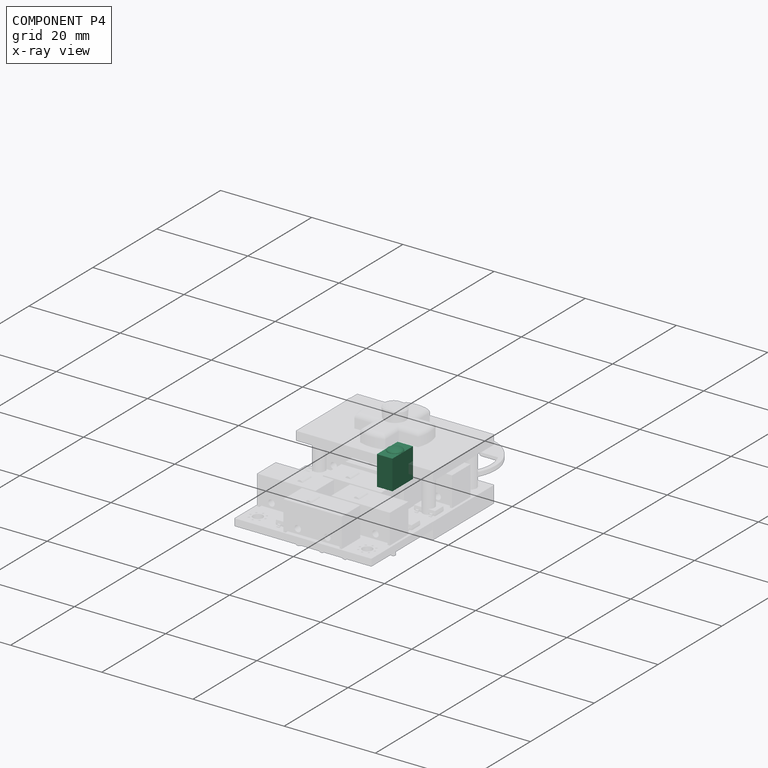
[diagram: component P4 — x-ray view]
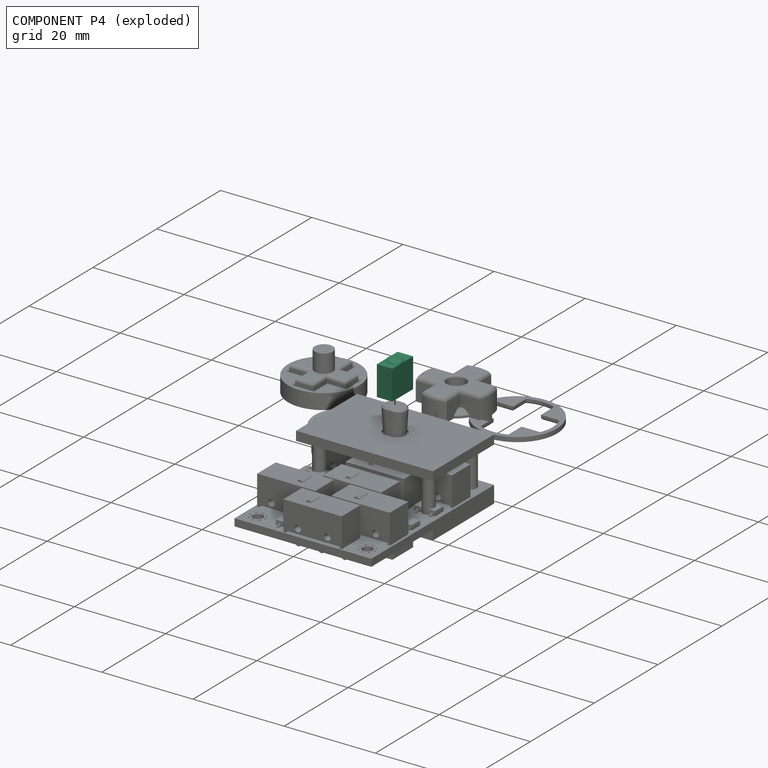
[diagram: component P4 — exploded]
COMPONENT P4 — recipe-attached ("pivot", modeled in this document).
Held by: resting contact with P0 (derived edge); resting contact with P1 (derived edge); resting contact with P5 (derived edge).
Construction recipe (the document's own serialized feature program — sketch geometry with constraints, then the solid features built on it; lengths are millimeters unless a unit is written):

FEATURE [Sketcher::SketchObject] Sketch018
  ArcFitTolerance = 1e-06
  AttachmentSupport = -> [XY_Plane018]
  FullyConstrained = false
  MakeInternals = false
  MapMode = 5
  sketch-geometry (4):
    g0: LineSegment StartX=13.2837 StartY=-6.29606 StartZ=0 EndX=13.2837 EndY=-12.7968 EndZ=0
    g1: LineSegment StartX=13.2837 StartY=-12.7968 StartZ=0 EndX=16.6847 EndY=-12.7968 EndZ=0
    g2: LineSegment StartX=16.6847 StartY=-12.7968 StartZ=0 EndX=16.6847 EndY=-6.29606 EndZ=0
    g3: LineSegment StartX=16.6847 StartY=-6.29606 StartZ=0 EndX=13.2837 EndY=-6.29606 EndZ=0
  constraints (8):
    c: Coincident(g0,g1)
    c: Coincident(g1,g2)
    c: Coincident(g2,g3)
    c: Coincident(g3,g0)
    c: Vertical(g0)
    c: Vertical(g2)
    c: Horizontal(g1)
    c: Horizontal(g3)
FEATURE [PartDesign::Pad] Pad008
  Direction = (0,0,1)
  Length = 6.5
  Length2 = 10
  Profile = -> Sketch018
  ReferenceAxis = -> Sketch018 [N_Axis]
  Refine = true
  Suppressed = false
  Type = 0
FEATURE [Sketcher::SketchObject] Sketch019
  ArcFitTolerance = 1e-06
  AttachmentSupport = -> [Pad008]
  ExternalGeometry = -> [Pad008]
  FullyConstrained = true
  MakeInternals = false
  MapMode = 5
  Placement = pos=(0,0,6.5) rot=(0,0,1;0rad)
  sketch-geometry (2):
    g0: LineSegment [constr] StartX=14.9842 StartY=-6.29606 StartZ=0 EndX=14.9842 EndY=-12.7968 EndZ=0
    g1: GeomPoint X=14.9842 Y=-9.54642 Z=0
  constraints (3):
    c: Symmetric(g-3,g-3,g0)
    c: Symmetric(g-4,g-4,g0)
    c: Symmetric(g0,g0,g1)
FEATURE [PartDesign::Body] Body006  label="pivot-body"
  AllowCompound = false
  Group = -> [Sketch018,Pad008,Sketch019]
  Origin = -> Origin017
  Tip = -> Pad008
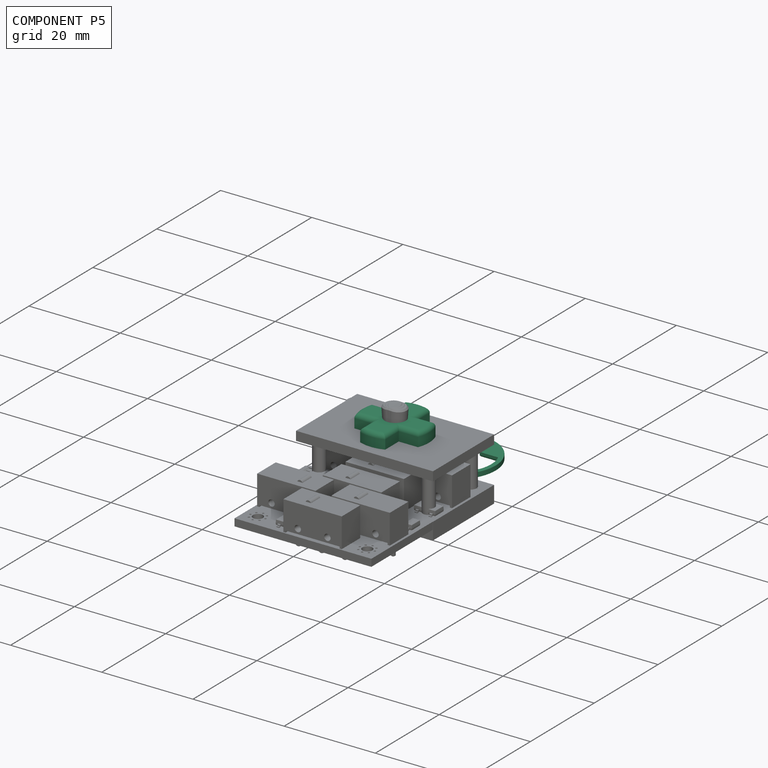
[diagram: component P5 — assembled]
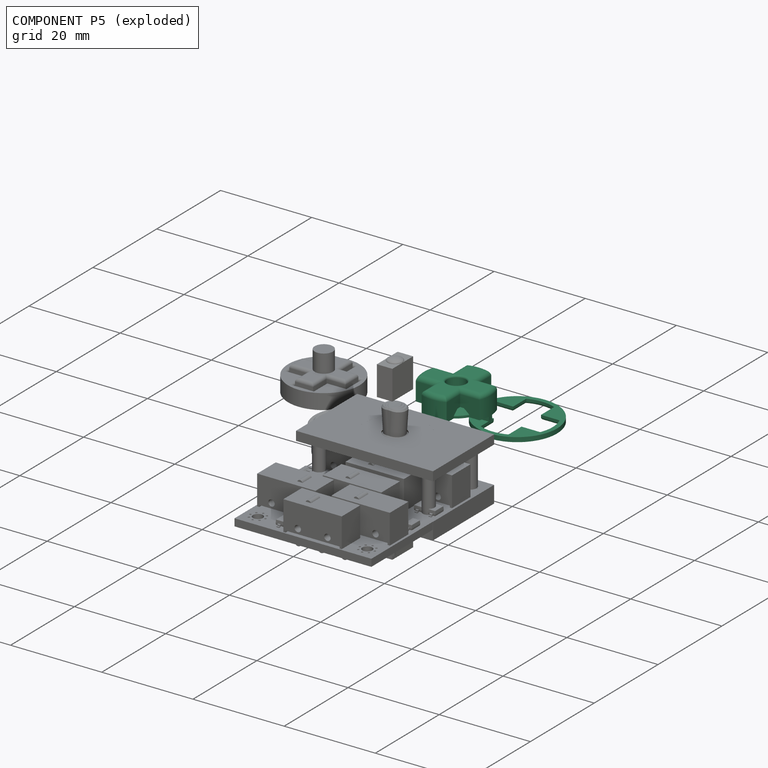
[diagram: component P5 — exploded]
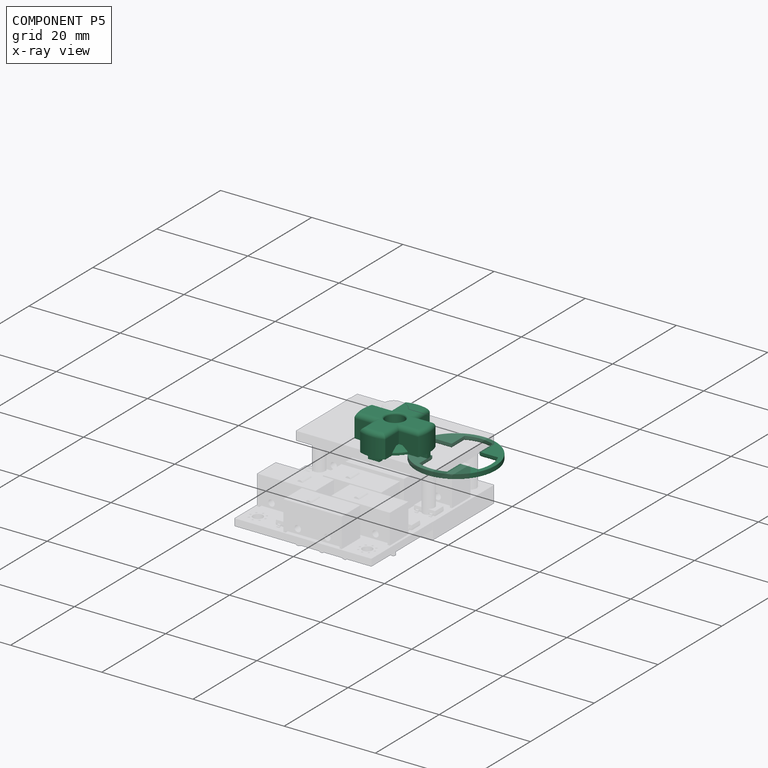
[diagram: component P5 — x-ray view]
COMPONENT P5 — recipe-attached ("dstick", modeled in this document).
Held by: resting contact with P1 (derived edge); resting contact with P4 (derived edge).
Construction recipe (the document's own serialized feature program — sketch geometry with constraints, then the solid features built on it; lengths are millimeters unless a unit is written):

FEATURE [PartDesign::SubShapeBinder] Binder004
  BindCopyOnChange = 0
  BindMode = 0
  ClaimChildren = false
  Context = -> Part009 [Body007.Binder004.]
  Fuse = false
  MakeFace = true
  OffsetFill = false
  OffsetIntersection = false
  OffsetJoinType = 0
  OffsetOpenResult = false
  PartialLoad = false
  Refine = true
  Relative = true
  Support = -> [Link001[Step_Models_58ce.Top_58ce.SW2_D2FC_F_7N_60M_8f2af3d61e4a_ln_006.Part__Feature021.Face59,Step_Models_58ce.Top_58ce.SW2_D2FC_F_7N_60M_8f2af3d61e4a_ln_003.Part__Feature021.Face59,Step_Models_58ce.Top_58ce.SW2_D2FC_F_7N_60M_8f2af3d61e4a_ln_005.Part__Feature021.Face59,Step_Models_58ce.Top_58ce.SW2_D2FC_F_7N_60M_8f2af3d61e4a_ln_004.Part__Feature021.Face59,Board_Geoms_58ce.Pcb_58ce.Edge152]]
  _Version = 2
FEATURE [PartDesign::Plane] DatumPlane001
  AttachmentOffset = pos=(0,0,1.5) rot=(0,0,1;0rad)
  AttachmentSupport = -> [Binder004]
  Length = 60
  MapMode = 5
  Placement = pos=(-9e-16,0,7.99) rot=(0,0,1;0rad)
  ResizeMode = 0
  Width = 60
FEATURE [Sketcher::SketchObject] Sketch023
  ArcFitTolerance = 1e-06
  AttachmentSupport = -> [DatumPlane001]
  ExternalGeometry = -> [Binder004]
  FullyConstrained = false
  MakeInternals = false
  MapMode = 5
  Placement = pos=(-9e-16,0,7.99) rot=(0,0,1;0rad)
  sketch-geometry (18):
    g0: Circle [constr] CenterX=14.98 CenterY=-9.55 CenterZ=0 NormalX=0 NormalY=0 NormalZ=1 AngleXU=0 Radius=7.5
    g1: ArcOfCircle CenterX=14.98 CenterY=-9.55 CenterZ=0 NormalX=0 NormalY=0 NormalZ=1 AngleXU=0 Radius=7.5 StartAngle=2.76617 EndAngle=3.51702
    g2: LineSegment [constr] StartX=12.23 StartY=-12.3 StartZ=0 EndX=17.73 EndY=-12.3 EndZ=0
    g3: LineSegment [constr] StartX=17.73 StartY=-12.3 StartZ=0 EndX=17.73 EndY=-6.8 EndZ=0
    g4: LineSegment [constr] StartX=17.73 StartY=-6.8 StartZ=0 EndX=12.23 EndY=-6.8 EndZ=0
    g5: LineSegment [constr] StartX=12.23 StartY=-6.8 StartZ=0 EndX=12.23 EndY=-12.3 EndZ=0
    g6: GeomPoint [constr] X=14.98 Y=-9.55 Z=0
    g7: LineSegment StartX=8.00236 StartY=-6.8 StartZ=0 EndX=12.23 EndY=-6.8 EndZ=0
    g8: LineSegment StartX=12.23 StartY=-6.8 StartZ=0 EndX=12.23 EndY=-2.57236 EndZ=0
    g9: LineSegment StartX=17.73 StartY=-2.57236 StartZ=0 EndX=17.73 EndY=-6.8 EndZ=0
    g10: LineSegment StartX=17.73 StartY=-6.8 StartZ=0 EndX=21.9576 EndY=-6.8 EndZ=0
    g11: LineSegment StartX=21.9576 StartY=-12.3 StartZ=0 EndX=17.73 EndY=-12.3 EndZ=0
    g12: LineSegment StartX=17.73 StartY=-12.3 StartZ=0 EndX=17.73 EndY=-16.5276 EndZ=0
    g13: LineSegment StartX=12.23 StartY=-16.5276 StartZ=0 EndX=12.23 EndY=-12.3 EndZ=0
    g14: LineSegment StartX=12.23 StartY=-12.3 StartZ=0 EndX=8.00236 EndY=-12.3 EndZ=0
    g15: ArcOfCircle CenterX=14.98 CenterY=-9.55 CenterZ=0 NormalX=0 NormalY=0 NormalZ=1 AngleXU=0 Radius=7.5 StartAngle=1.19537 EndAngle=1.94622
    g16: ArcOfCircle CenterX=14.98 CenterY=-9.55 CenterZ=0 NormalX=0 NormalY=0 NormalZ=1 AngleXU=0 Radius=7.5 StartAngle=5.90776 EndAngle=6.65861
    g17: ArcOfCircle CenterX=14.98 CenterY=-9.55 CenterZ=0 NormalX=0 NormalY=0 NormalZ=1 AngleXU=0 Radius=7.5 StartAngle=4.33697 EndAngle=5.08781
  constraints (48):
    c: Diameter(g0) = 15
    c: Coincident(g0,g-3)
    c: Coincident(g1,g0)
    c: Equal(g1,g0)
    c: Coincident(g2,g3)
    c: Coincident(g3,g4)
    c: Coincident(g4,g5)
    c: Coincident(g5,g2)
    c: Horizontal(g2)
    c: Horizontal(g4)
    c: Vertical(g3)
    c: Vertical(g5)
    c: Symmetric(g4,g2,g6)
    c: Distance(g3,g5) = 5.5
    c: Distance(g2,g4) = 5.5
    c: Coincident(g6,g0)
    c: Coincident(g7,g4)
    c: Horizontal(g7)
    c: Coincident(g7,g8)
    c: Vertical(g8)
    c: PointOnObject(g9,g15)
    c: Coincident(g9,g3)
    c: Coincident(g9,g10)
    c: Horizontal(g10)
    c: PointOnObject(g11,g16)
    c: Coincident(g11,g2)
    c: Horizontal(g11)
    c: Coincident(g11,g12)
    c: Vertical(g12)
    c: PointOnObject(g13,g17)
    c: Coincident(g13,g2)
    c: Vertical(g13)
    c: Coincident(g13,g14)
    c: Horizontal(g14)
    c: Coincident(g15,g8)
    c: Coincident(g1,g7)
    c: Equal(g1,g15)
    c: Coincident(g16,g10)
    c: PointOnObject(g15,g9)
    c: Coincident(g1,g15)
    c: Equal(g1,g16)
    c: Coincident(g17,g12)
    c: PointOnObject(g16,g11)
    c: Coincident(g1,g16)
    c: Equal(g1,g17)
    c: Coincident(g1,g14)
    c: PointOnObject(g17,g13)
    c: Coincident(g1,g17)
FEATURE [PartDesign::Pad] Pad010
  Direction = (0,0,1)
  Length = 5
  Length2 = 10
  Placement = pos=(-9e-16,1.4e-15,7.99) rot=(0,0,1;0rad)
  Profile = -> Sketch023
  ReferenceAxis = -> Sketch023 [N_Axis]
  Refine = true
  Suppressed = false
  Type = 0
FEATURE [Sketcher::SketchObject] Sketch024
  ArcFitTolerance = 1e-06
  AttachmentSupport = -> [Pad010]
  ExternalGeometry = -> [Binder004,Pad010]
  FullyConstrained = true
  MakeInternals = false
  MapMode = 5
  Placement = pos=(-9e-16,1.4e-15,7.99) rot=(1,0,0;3.14159rad)
  sketch-geometry (24):
    g0: LineSegment [constr] StartX=8.18 StartY=11 StartZ=0 EndX=9.38 EndY=8.1 EndZ=0
    g1: LineSegment [constr] StartX=14.38 StartY=4.8 StartZ=0 EndX=15.58 EndY=1.9 EndZ=0
    g2: LineSegment [constr] StartX=20.58 StartY=11 StartZ=0 EndX=21.78 EndY=8.1 EndZ=0
    g3: LineSegment [constr] StartX=14.38 StartY=17.2 StartZ=0 EndX=15.58 EndY=14.3 EndZ=0
    g4: LineSegment StartX=10.0633 StartY=9.05 StartZ=0 EndX=10.0633 EndY=10.05 EndZ=0
    g5: LineSegment StartX=10.0633 StartY=10.05 StartZ=0 EndX=7.49669 EndY=10.05 EndZ=0
    g6: LineSegment StartX=7.49669 StartY=10.05 StartZ=0 EndX=7.49669 EndY=9.05 EndZ=0
    g7: LineSegment StartX=7.49669 StartY=9.05 StartZ=0 EndX=10.0633 EndY=9.05 EndZ=0
    g8: GeomPoint [constr] X=8.78 Y=9.55 Z=0
    g9: LineSegment StartX=16.2633 StartY=15.25 StartZ=0 EndX=16.2633 EndY=16.25 EndZ=0
    g10: LineSegment StartX=16.2633 StartY=16.25 StartZ=0 EndX=13.6967 EndY=16.25 EndZ=0
    g11: LineSegment StartX=13.6967 StartY=16.25 StartZ=0 EndX=13.6967 EndY=15.25 EndZ=0
    g12: LineSegment StartX=13.6967 StartY=15.25 StartZ=0 EndX=16.2633 EndY=15.25 EndZ=0
    g13: GeomPoint [constr] X=14.98 Y=15.75 Z=0
    g14: LineSegment StartX=19.8967 StartY=10.05 StartZ=0 EndX=19.8967 EndY=9.05 EndZ=0
    g15: LineSegment StartX=19.8967 StartY=9.05 StartZ=0 EndX=22.4633 EndY=9.05 EndZ=0
    g16: LineSegment StartX=22.4633 StartY=9.05 StartZ=0 EndX=22.4633 EndY=10.05 EndZ=0
    g17: LineSegment StartX=22.4633 StartY=10.05 StartZ=0 EndX=19.8967 EndY=10.05 EndZ=0
    g18: GeomPoint [constr] X=21.18 Y=9.55 Z=0
    g19: LineSegment StartX=13.6967 StartY=2.85 StartZ=0 EndX=16.2633 EndY=2.85 EndZ=0
    g20: LineSegment StartX=16.2633 StartY=2.85 StartZ=0 EndX=16.2633 EndY=3.85 EndZ=0
    g21: LineSegment StartX=16.2633 StartY=3.85 StartZ=0 EndX=13.6967 EndY=3.85 EndZ=0
    g22: LineSegment StartX=13.6967 StartY=3.85 StartZ=0 EndX=13.6967 EndY=2.85 EndZ=0
    g23: GeomPoint [constr] X=14.98 Y=3.35 Z=0
  constraints (56):
    c: Coincident(g0,g-9)
    c: Coincident(g0,g-4)
    c: Coincident(g1,g-12)
    c: Coincident(g1,g-6)
    c: Coincident(g2,g-10)
    c: Coincident(g2,g-5)
    c: Coincident(g3,g-11)
    c: Coincident(g3,g-3)
    c: Coincident(g4,g5)
    c: Coincident(g5,g6)
    c: Coincident(g6,g7)
    c: Coincident(g7,g4)
    c: Vertical(g4)
    c: Vertical(g6)
    c: Horizontal(g5)
    c: Horizontal(g7)
    c: Symmetric(g6,g4,g8)
    c: Symmetric(g0,g0,g8)
    c: PointOnObject(g5,g-7)
    c: Coincident(g9,g10)
    c: Coincident(g10,g11)
    c: Coincident(g11,g12)
    c: Coincident(g12,g9)
    c: Vertical(g9)
    c: Vertical(g11)
    c: Horizontal(g10)
    c: Horizontal(g12)
    c: Symmetric(g11,g9,g13)
    c: Symmetric(g3,g3,g13)
    c: Coincident(g14,g15)
    c: Coincident(g15,g16)
    c: Coincident(g16,g17)
    c: Coincident(g17,g14)
    c: Vertical(g14)
    c: Vertical(g16)
    c: Horizontal(g15)
    c: Horizontal(g17)
    c: Symmetric(g16,g14,g18)
    c: Symmetric(g2,g2,g18)
    c: PointOnObject(g15,g-8)
    c: Coincident(g19,g20)
    c: Coincident(g20,g21)
    c: Coincident(g21,g22)
    c: Coincident(g22,g19)
    c: Horizontal(g19)
    c: Horizontal(g21)
    c: Vertical(g20)
    c: Vertical(g22)
    c: Symmetric(g21,g19,g23)
    c: Symmetric(g1,g1,g23)
    c: DistanceY(g4,g4) = 1
    c: Equal(g4,g20)
    c: Equal(g20,g14)
    c: Equal(g14,g9)
    c: Equal(g7,g21)
    c: Equal(g21,g12)
FEATURE [PartDesign::Pad] Pad011
  BaseFeature = -> Pad010
  Direction = (0,0,-1)
  Length = 1
  Length2 = 10
  Placement = pos=(-9e-16,1.4e-15,7.99) rot=(0,0,1;0rad)
  Profile = -> Sketch024
  ReferenceAxis = -> Sketch024 [N_Axis]
  Refine = true
  Suppressed = false
  Type = 0
FEATURE [PartDesign::Plane] DatumPlane002  label="DatumPlaneHole"
  AttachmentOffset = pos=(0,0,-1) rot=(0,0,1;0rad)
  Length = 60
  MapMode = 5
  Placement = pos=(-9e-16,1.4e-15,8.99) rot=(1,0,0;3.14159rad)
  ResizeMode = 0
  Width = 60
FEATURE [PartDesign::Plane] DatumPlane003  label="DatumPlaneRetainer"
  AttachmentSupport = -> [Pad011]
  Length = 60
  MapMode = 2
  Placement = pos=(-9e-16,1.4e-15,7.99) rot=(0,0,1;0rad)
  ResizeMode = 0
  Width = 60
FEATURE [Sketcher::SketchObject] Sketch026
  ArcFitTolerance = 1e-06
  AttachmentSupport = -> [DatumPlane003]
  ExternalGeometry = -> [Binder004]
  FullyConstrained = true
  MakeInternals = false
  MapMode = 5
  Placement = pos=(-9e-16,1.4e-15,7.99) rot=(0,0,1;0rad)
  sketch-geometry (1):
    g0: Circle CenterX=14.98 CenterY=-9.55 CenterZ=0 NormalX=0 NormalY=0 NormalZ=1 AngleXU=0 Radius=5.5
  constraints (2):
    c: Coincident(g0,g-3)
    c: Diameter(g0) = 11
FEATURE [PartDesign::Pad] Pad012
  BaseFeature = -> Pad011
  Direction = (0,0,1)
  Length = 1.5
  Length2 = 10
  Placement = pos=(-9e-16,1.4e-15,7.99) rot=(0,0,1;0rad)
  Profile = -> Sketch026
  ReferenceAxis = -> Sketch026 [N_Axis]
  Refine = true
  Suppressed = false
  Type = 0
FEATURE [Sketcher::SketchObject] Sketch027
  ArcFitTolerance = 1e-06
  AttachmentSupport = -> [Pad012]
  ExternalGeometry = -> [Binder004]
  FullyConstrained = true
  MakeInternals = false
  MapMode = 5
  Placement = pos=(-9e-16,1.4e-15,12.99) rot=(0,0,1;0rad)
  sketch-geometry (1):
    g0: Circle CenterX=14.98 CenterY=-9.55 CenterZ=0 NormalX=0 NormalY=0 NormalZ=1 AngleXU=0 Radius=2.05
  constraints (2):
    c: Diameter(g0) = 4.1
    c: Coincident(g0,g-3)
FEATURE [PartDesign::Pocket] Pocket003
  BaseFeature = -> Pad012
  Direction = (0,0,-1)
  Length = 0
  Length2 = 5
  Placement = pos=(-9e-16,1.4e-15,7.99) rot=(0,0,1;0rad)
  Profile = -> Sketch027
  ReferenceAxis = -> Sketch027 [N_Axis]
  Refine = true
  Suppressed = false
  Type = 3
  UpToFace = -> DatumPlane002
FEATURE [PartDesign::ShapeBinder] ShapeBinder002
  Support = -> [Body003]
  TraceSupport = false
FEATURE [Sketcher::SketchObject] Sketch030
  ArcFitTolerance = 1e-06
  AttachmentSupport = -> [ShapeBinder002]
  FullyConstrained = true
  MakeInternals = false
  MapMode = 5
  Placement = pos=(0,0,-2.5) rot=(1,0,0;3.14159rad)
  sketch-geometry (1):
    g0: Circle CenterX=14.98 CenterY=-9.55 CenterZ=0 NormalX=0 NormalY=0 NormalZ=1 AngleXU=0 Radius=8.72
  constraints (2):
    c: Coincident(g0,g-3)
    c: Diameter(g0) = 17.44
FEATURE [PartDesign::Pad] Pad014
  Direction = (0,0,-1)
  Length = 1
  Length2 = 10
  Profile = -> Sketch030
  ReferenceAxis = -> Sketch030 [N_Axis]
  Refine = true
  Reversed = true
  Suppressed = false
  Type = 0
FEATURE [Sketcher::SketchObject] Sketch031
  ArcFitTolerance = 1e-06
  AttachmentSupport = -> [Pad014]
  ExternalGeometry = -> [Pad014]
  FullyConstrained = true
  MakeInternals = false
  MapMode = 5
  Placement = pos=(0,0,-2.5) rot=(1,0,0;3.14159rad)
  sketch-geometry (18):
    g0: Circle [constr] CenterX=14.98 CenterY=-9.55 CenterZ=0 NormalX=0 NormalY=0 NormalZ=1 AngleXU=0 Radius=7.75
    g1: LineSegment [constr] StartX=11.93 StartY=-12.6 StartZ=0 EndX=18.03 EndY=-12.6 EndZ=0
    g2: LineSegment [constr] StartX=18.03 StartY=-12.6 StartZ=0 EndX=18.03 EndY=-6.5 EndZ=0
    g3: LineSegment [constr] StartX=18.03 StartY=-6.5 StartZ=0 EndX=11.93 EndY=-6.5 EndZ=0
    g4: LineSegment [constr] StartX=11.93 StartY=-6.5 StartZ=0 EndX=11.93 EndY=-12.6 EndZ=0
    g5: GeomPoint [constr] X=14.98 Y=-9.55 Z=0
    g6: LineSegment StartX=11.93 StartY=-2.42539 StartZ=0 EndX=11.93 EndY=-6.5 EndZ=0
    g7: LineSegment StartX=11.93 StartY=-6.5 StartZ=0 EndX=7.85539 EndY=-6.5 EndZ=0
    g8: LineSegment StartX=7.85539 StartY=-12.6 StartZ=0 EndX=11.93 EndY=-12.6 EndZ=0
    g9: LineSegment StartX=11.93 StartY=-12.6 StartZ=0 EndX=11.93 EndY=-16.6746 EndZ=0
    g10: LineSegment StartX=18.03 StartY=-16.6746 StartZ=0 EndX=18.03 EndY=-12.6 EndZ=0
    g11: LineSegment StartX=18.03 StartY=-12.6 StartZ=0 EndX=22.1046 EndY=-12.6 EndZ=0
    g12: LineSegment StartX=22.1046 StartY=-6.5 StartZ=0 EndX=18.03 EndY=-6.5 EndZ=0
    g13: LineSegment StartX=18.03 StartY=-6.5 StartZ=0 EndX=18.03 EndY=-2.42539 EndZ=0
    g14: ArcOfCircle CenterX=14.98 CenterY=-9.55 CenterZ=0 NormalX=0 NormalY=0 NormalZ=1 AngleXU=0 Radius=7.75 StartAngle=1.16631 EndAngle=1.97528
    g15: ArcOfCircle CenterX=14.98 CenterY=-9.55 CenterZ=0 NormalX=0 NormalY=0 NormalZ=1 AngleXU=0 Radius=7.75 StartAngle=4.3079 EndAngle=5.11688
    g16: ArcOfCircle CenterX=14.98 CenterY=-9.55 CenterZ=0 NormalX=0 NormalY=0 NormalZ=1 AngleXU=0 Radius=7.75 StartAngle=2.7371 EndAngle=3.54608
    g17: ArcOfCircle CenterX=14.98 CenterY=-9.55 CenterZ=0 NormalX=0 NormalY=0 NormalZ=1 AngleXU=0 Radius=7.75 StartAngle=5.8787 EndAngle=6.68767
  constraints (52):
    c: Diameter(g0) = 15.5
    c: Coincident(g0,g-3)
    c: Coincident(g1,g2)
    c: Coincident(g2,g3)
    c: Coincident(g3,g4)
    c: Coincident(g4,g1)
    c: Horizontal(g1)
    c: Horizontal(g3)
    c: Vertical(g2)
    c: Vertical(g4)
    c: Symmetric(g3,g1,g5)
    c: Distance(g2,g4) = 6.1
    c: Coincident(g5,g0)
    c: Equal(g1,g2)
    c: PointOnObject(g6,g0)
    c: Coincident(g6,g3)
    c: Vertical(g6)
    c: Coincident(g6,g7)
    c: PointOnObject(g7,g0)
    c: Horizontal(g7)
    c: PointOnObject(g8,g0)
    c: Coincident(g8,g1)
    c: Horizontal(g8)
    c: Coincident(g8,g9)
    c: PointOnObject(g9,g0)
    c: Vertical(g9)
    c: PointOnObject(g10,g0)
    c: Coincident(g10,g1)
    c: Vertical(g10)
    c: Coincident(g10,g11)
    c: PointOnObject(g11,g0)
    c: Horizontal(g11)
    c: PointOnObject(g12,g0)
    c: Coincident(g12,g2)
    c: Horizontal(g12)
    c: Coincident(g12,g13)
    c: PointOnObject(g13,g0)
    c: Vertical(g13)
    c: Coincident(g14,g0)
    c: Coincident(g17,g12)
    c: Coincident(g14,g13)
    c: PointOnObject(g16,g8)
    c: PointOnObject(g15,g9)
    c: Coincident(g14,g15)
    c: Equal(g14,g16)
    c: PointOnObject(g14,g6)
    c: PointOnObject(g16,g7)
    c: Coincident(g14,g16)
    c: Equal(g15,g17)
    c: PointOnObject(g15,g10)
    c: PointOnObject(g17,g11)
    c: Coincident(g15,g17)
FEATURE [PartDesign::Pocket] Pocket005
  BaseFeature = -> Pad014
  Direction = (0,0,1)
  Length = 5
  Length2 = 5
  Profile = -> Sketch031
  ReferenceAxis = -> Sketch031 [N_Axis]
  Refine = true
  Suppressed = false
  Type = 1
FEATURE [PartDesign::Fillet] Fillet003
  Base = -> Pocket003 [Edge73,Edge71,Edge66,Edge55,Edge52,Edge46,Edge94,Edge93,Edge88,Edge84,Edge82,Edge77]
  BaseFeature = -> Pocket003
  Placement = pos=(-9e-16,1.4e-15,7.99) rot=(0,0,1;0rad)
  Radius = 1
  Refine = true
  SupportTransform = false
  Suppressed = false
  UseAllEdges = false
FEATURE [PartDesign::Fillet] Fillet004
  Base = -> Fillet003 [Edge64]
  BaseFeature = -> Fillet003
  Placement = pos=(-9e-16,1.4e-15,7.99) rot=(0,0,1;0rad)
  Radius = 0.4
  Refine = true
  SupportTransform = false
  Suppressed = false
  UseAllEdges = false
FEATURE [PartDesign::Fillet] Fillet005
  Base = -> Pocket005 [Edge8,Edge9,Edge10,Edge11,Edge12,Edge13,Edge14,Edge15,Edge5,Edge6,Edge7,Edge4]
  BaseFeature = -> Pocket005
  Radius = 0.5
  Refine = true
  SupportTransform = false
  Suppressed = false
  UseAllEdges = false
FEATURE [PartDesign::Body] Body009  label="recess2"
  AllowCompound = false
  Group = -> [ShapeBinder002,Sketch030,Pad014,Sketch031,Pocket005,Fillet005]
  Origin = -> Origin023
  Tip = -> Fillet005
FEATURE [Sketcher::SketchObject] Sketch032
  ArcFitTolerance = 1e-06
  AttachmentSupport = -> [XY_Plane026]
  FullyConstrained = true
  MakeInternals = false
  MapMode = 5
  sketch-geometry (1):
    g0: Circle CenterX=0 CenterY=0 CenterZ=0 NormalX=0 NormalY=0 NormalZ=1 AngleXU=0 Radius=2
  constraints (2):
    c: Diameter(g0) = 4
    c: Coincident(g0,g-1)
FEATURE [PartDesign::Pad] Pad015
  Direction = (0,0,1)
  Length = 8
  Length2 = 10
  Profile = -> Sketch032
  ReferenceAxis = -> Sketch032 [N_Axis]
  Refine = true
  Suppressed = false
  Type = 0
FEATURE [PartDesign::Body] Body011  label="stick001"
  AllowCompound = false
  Group = -> [Sketch032,Pad015]
  Origin = -> Origin025
  Tip = -> Pad015
FEATURE [PartDesign::Chamfer] Chamfer003
  Angle = 45
  Base = -> Fillet004 [Edge104,Edge105,Edge109,Edge108]
  BaseFeature = -> Fillet004
  ChamferType = 2
  FlipDirection = false
  Placement = pos=(-9e-16,1.4e-15,7.99) rot=(0,0,1;0rad)
  Refine = true
  Size = 1
  Size2 = 0.5
  SupportTransform = false
  Suppressed = false
  UseAllEdges = false
FEATURE [Sketcher::SketchObject] Sketch033
  ArcFitTolerance = 1e-06
  AttachmentSupport = -> [Chamfer003]
  ExternalGeometry = -> [Chamfer003]
  FullyConstrained = true
  MakeInternals = false
  MapMode = 5
  Placement = pos=(-9e-16,1.4e-15,7.99) rot=(1,0,0;3.14159rad)
  sketch-geometry (1):
    g0: Circle CenterX=14.98 CenterY=9.55 CenterZ=0 NormalX=0 NormalY=0 NormalZ=1 AngleXU=0 Radius=1
  constraints (2):
    c: Diameter(g0) = 2
    c: Coincident(g0,g-3)
FEATURE [PartDesign::Pad] Pad016
  BaseFeature = -> Chamfer003
  Direction = (0,0,-1)
  Length = 1.5
  Length2 = 10
  Placement = pos=(-9e-16,1.4e-15,7.99) rot=(0,0,1;0rad)
  Profile = -> Sketch033
  ReferenceAxis = -> Sketch033 [N_Axis]
  Refine = true
  Suppressed = false
  Type = 0
FEATURE [PartDesign::Fillet] Fillet006
  Base = -> Pad016 [Edge129]
  BaseFeature = -> Pad016
  Placement = pos=(-9e-16,1.4e-15,7.99) rot=(0,0,1;0rad)
  Radius = 1
  Refine = true
  SupportTransform = false
  Suppressed = false
  UseAllEdges = false
FEATURE [PartDesign::Body] Body007  label="pad"
  AllowCompound = false
  Group = -> [Binder004,DatumPlane001,Sketch023,Pad010,Sketch024,Pad011,DatumPlane003,DatumPlane002,Sketch026,Pad012,Sketch027,Pocket003,Sketch033,Fillet003,Fillet004,Chamfer003,Pad016,Fillet006]
  Origin = -> Origin020
  Tip = -> Fillet006
PROVENANCE & LICENSES
Assembly and component geometry: a FreeCAD (.FCStd) document from a public repository crawl; components, placements and joints were extracted with FreeCAD and each solid tessellated.
Construction recipes: the document's own serialized feature recipes (and, for linked parts, the recipes of companion documents from the same project).
License: other.
Joints: native FreeCAD joints and A2plus constraints are mapped to standard mate types; edges marked 'derived from contact' connect touching components and are measured from the geometry, not modeled.
Verification: 6 of this assembly's 6 components carry a construction recipe (6 from this document itself); the rest are geometry-only. Every component's tessellation passed the extraction mesh gates (mesh-volume checksum against the B-rep where available, bounding-box inflation <= 2%).
Renders: orthographic iso camera (az 35 / el 25); the floor grid conveys scale (grid pitch printed in each image; no ruler). In the exploded view each component is displaced by its stored offset vector: the offsets alone carry the explosion direction (mate normal/axis signs are not orientation cues and do not encode it), and separation distances are assigned per mate-chain, not proportionally to assembly-order depth.
